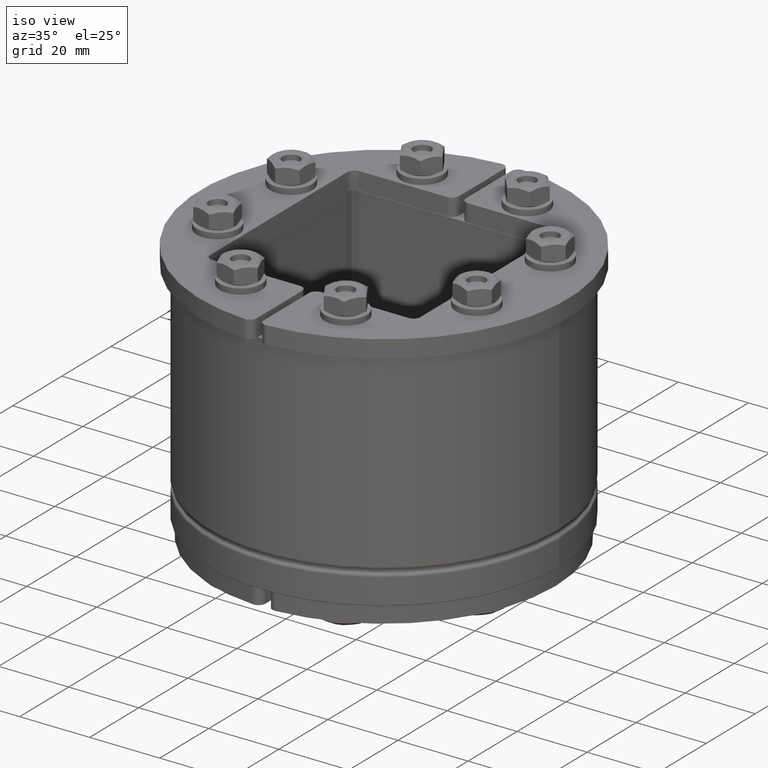
[diagram: clean part render]
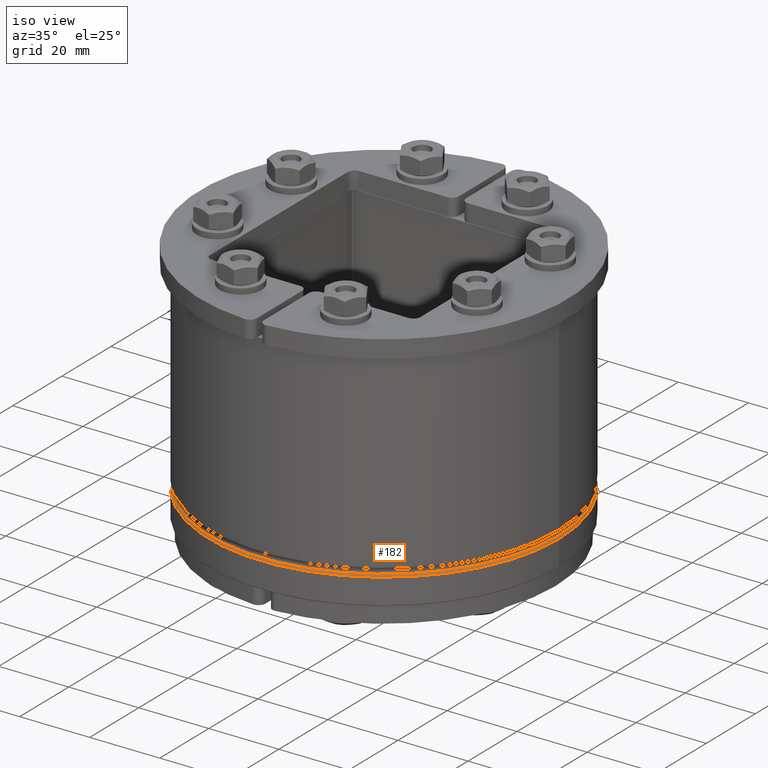
[diagram: same view with one face highlighted and labeled with its STEP entity id]
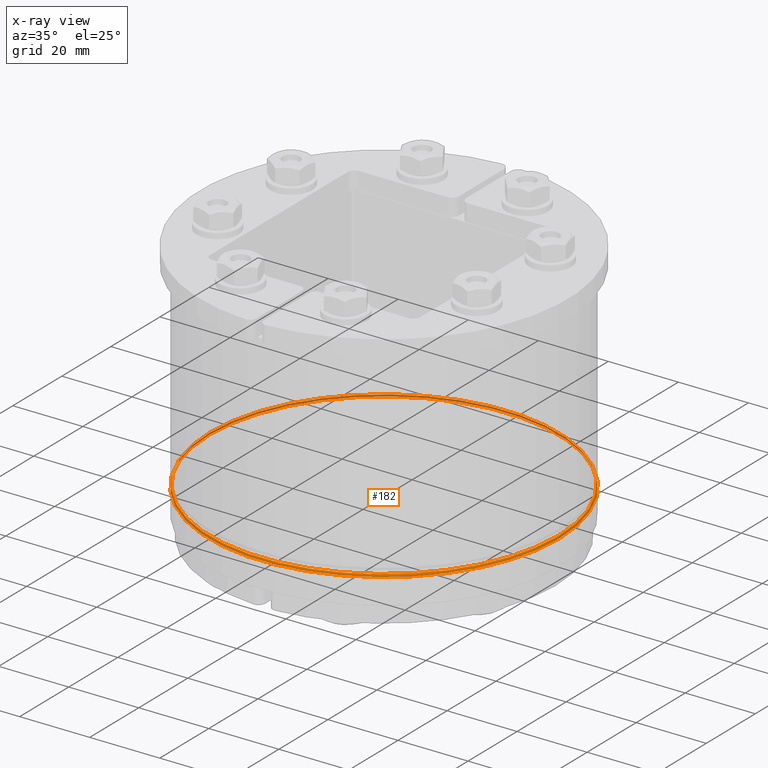
[diagram: x-ray of the same camera — body ghosted, the highlighted face saturated]
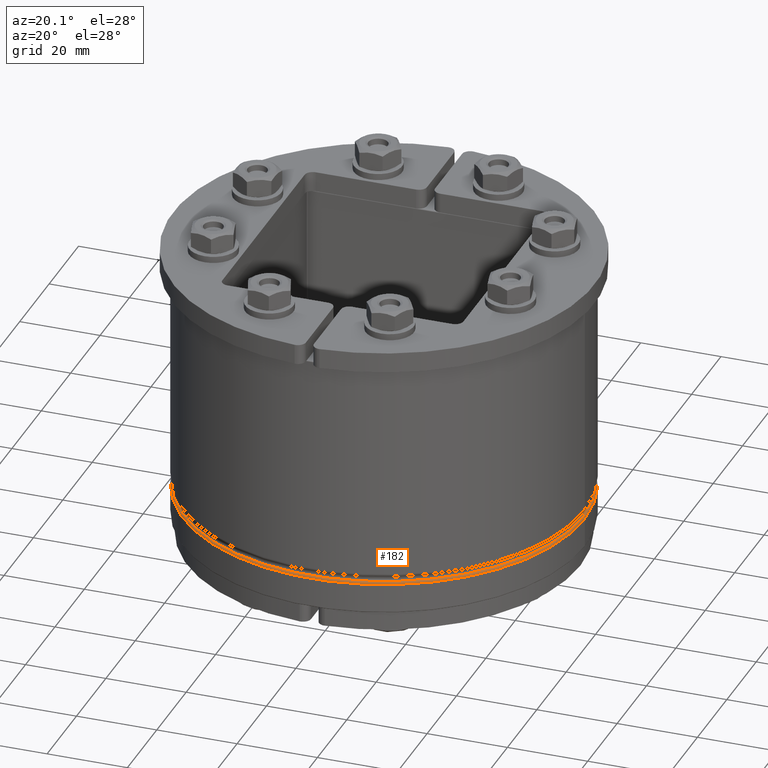
[diagram: same view with one face highlighted and labeled with its STEP entity id]
A machine part, iso view. The second image highlights one B-rep face of the part: STEP entity #182.
The next image is the same camera in x-ray: the body ghosted, the highlighted face saturated — about 37% of this face is hidden behind the body in this view.
A second angle (auxiliary view) of the same face is appended — the face is thin or edge-on in the first view.
In plain terms, the highlighted toroidal blend (fillet) surface has major radius 49 mm and minor (blend) radius 1 mm.
Its self-contained STEP definition (entity closure, byte-faithful):
#155=CARTESIAN_POINT('',(0.0,0.0,7.4771243444677));
#156=DIRECTION('',(0.0,0.0,-1.0));
#157=DIRECTION('',(-1.0,0.0,0.0));
#158=AXIS2_PLACEMENT_3D('',#155,#156,#157);
#159=TOROIDAL_SURFACE('',#158,49.0,1.0);
#160=CARTESIAN_POINT('',(49.75,-6.092618E-015,8.138562172233851));
#161=VERTEX_POINT('',#160);
#162=CARTESIAN_POINT('',(0.0,0.0,8.138562172233851));
#163=DIRECTION('',(0.0,0.0,-1.0));
#164=DIRECTION('',(-1.0,0.0,0.0));
#165=AXIS2_PLACEMENT_3D('',#162,#163,#164);
#166=CIRCLE('',#165,49.75);
#167=EDGE_CURVE('',#161,#161,#166,.T.);
#168=ORIENTED_EDGE('',*,*,#167,.T.);
#169=EDGE_LOOP('',(#168));
#170=FACE_OUTER_BOUND('',#169,.T.);
#171=CARTESIAN_POINT('',(50.0,6.123234E-015,7.4771243444677));
#172=VERTEX_POINT('',#171);
#173=CARTESIAN_POINT('',(0.0,0.0,7.4771243444677));
#174=DIRECTION('',(0.0,0.0,1.0));
#175=DIRECTION('',(-1.0,0.0,0.0));
#176=AXIS2_PLACEMENT_3D('',#173,#174,#175);
#177=CIRCLE('',#176,50.0);
#178=EDGE_CURVE('',#172,#172,#177,.T.);
#179=ORIENTED_EDGE('',*,*,#178,.T.);
#180=EDGE_LOOP('',(#179));
#181=FACE_BOUND('',#180,.T.);
#182=ADVANCED_FACE('',(#170,#181),#159,.T.);